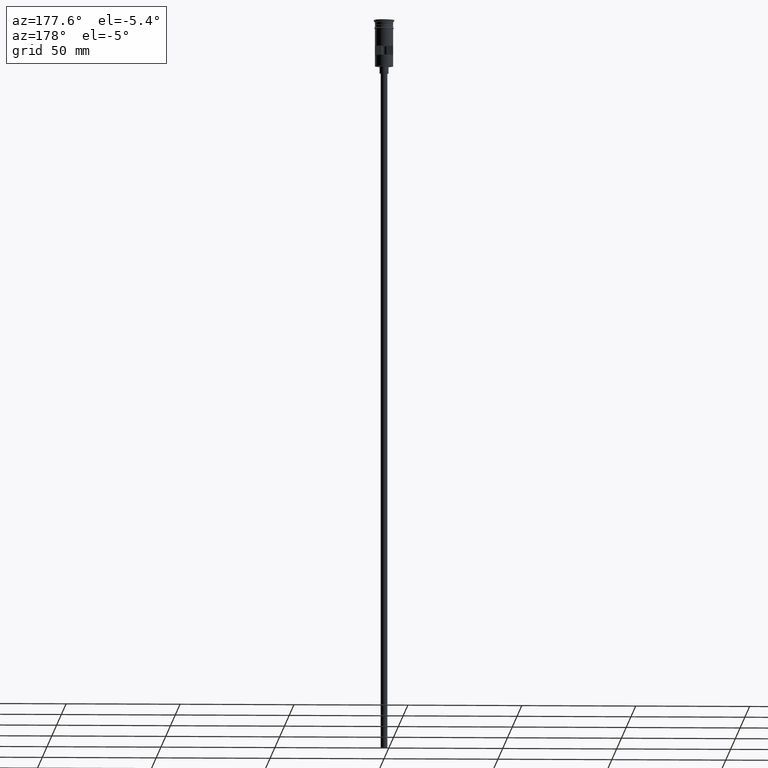
[diagram: clean part render]
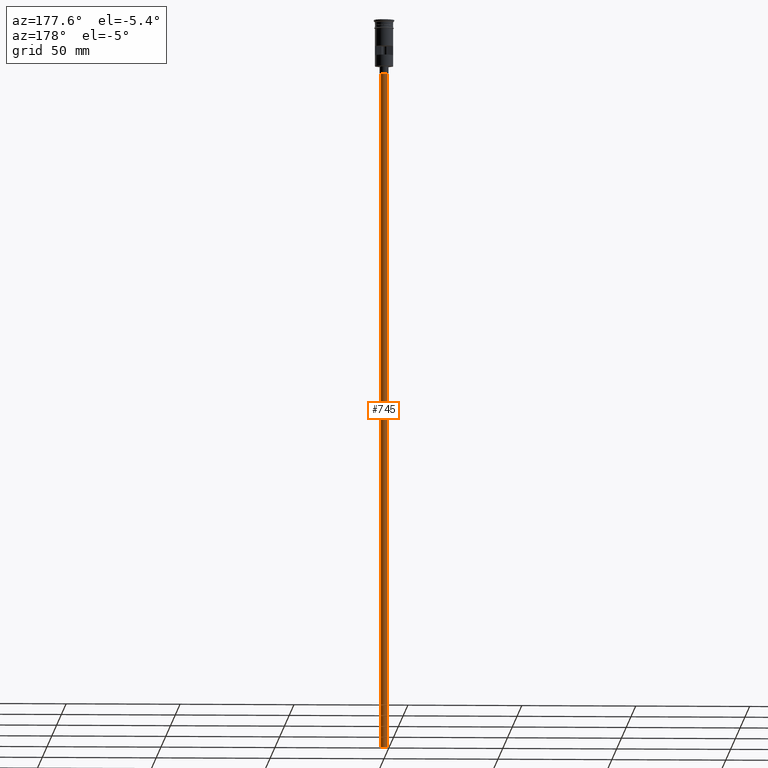
[diagram: same view with one face highlighted and labeled with its STEP entity id]
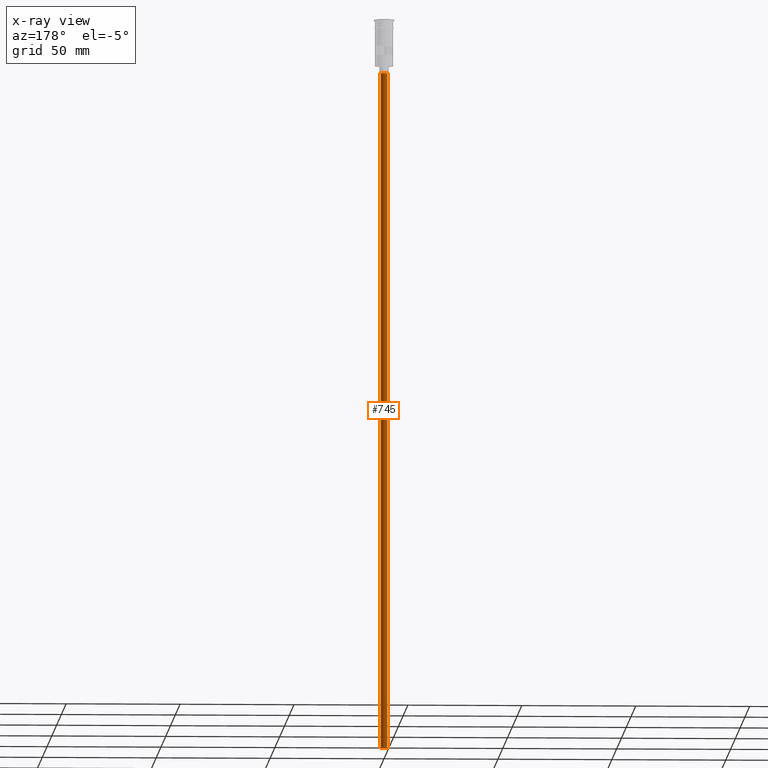
[diagram: x-ray of the same camera — body ghosted, the highlighted face saturated]
A machine part, auxiliary view. The second image highlights one B-rep face of the part: STEP entity #745.
The next image is the same camera in x-ray: the body ghosted, the highlighted face saturated — about 0% of this face is hidden behind the body in this view.
In plain terms, the highlighted cylindrical surface (edge-blend (fillet) strip) has radius 1.5 mm, axis along (-0, -0, 1).
Its self-contained STEP definition (entity closure, byte-faithful):
#29 = CARTESIAN_POINT ( 'NONE',  ( -1.500000000000000222, 1.836970198721030181E-16, -320.5000000000000000 ) ) ;
#61 = LINE ( 'NONE', #442, #183 ) ;
#83 = FACE_OUTER_BOUND ( 'NONE', #1556, .T. ) ;
#115 = VERTEX_POINT ( 'NONE', #29 ) ;
#133 = VERTEX_POINT ( 'NONE', #1150 ) ;
#154 = EDGE_CURVE ( 'NONE', #115, #1472, #1405, .T. ) ;
#183 = VECTOR ( 'NONE', #567, 1000.000000000000000 ) ;
#234 = ORIENTED_EDGE ( 'NONE', *, *, #1288, .F. ) ;
#299 = DIRECTION ( 'NONE',  ( -0.000000000000000000, -0.000000000000000000, 1.000000000000000000 ) ) ;
#338 = EDGE_CURVE ( 'NONE', #1472, #751, #872, .T. ) ;
#368 = DIRECTION ( 'NONE',  ( 0.000000000000000000, 0.000000000000000000, -1.000000000000000000 ) ) ;
#442 = CARTESIAN_POINT ( 'NONE',  ( 1.500000000000000222, 0.000000000000000000, -320.5000000000000000 ) ) ;
#513 = CARTESIAN_POINT ( 'NONE',  ( 0.000000000000000000, 0.000000000000000000, -320.5000000000000000 ) ) ;
#529 = AXIS2_PLACEMENT_3D ( 'NONE', #513, #1477, #1593 ) ;
#567 = DIRECTION ( 'NONE',  ( -0.000000000000000000, -0.000000000000000000, 1.000000000000000000 ) ) ;
#660 = CARTESIAN_POINT ( 'NONE',  ( -1.500000000000000222, 1.836970198721030181E-16, -23.49999999999999645 ) ) ;
#727 = CIRCLE ( 'NONE', #529, 1.500000000000000222 ) ;
#736 = AXIS2_PLACEMENT_3D ( 'NONE', #880, #368, #862 ) ;
#745 = ADVANCED_FACE ( 'NONE', ( #83 ), #956, .T. ) ;
#751 = VERTEX_POINT ( 'NONE', #1148 ) ;
#813 = VECTOR ( 'NONE', #299, 1000.000000000000000 ) ;
#862 = DIRECTION ( 'NONE',  ( -1.000000000000000000, 0.000000000000000000, 0.000000000000000000 ) ) ;
#872 = CIRCLE ( 'NONE', #736, 1.500000000000000222 ) ;
#880 = CARTESIAN_POINT ( 'NONE',  ( 0.000000000000000000, 0.000000000000000000, -23.49999999999999645 ) ) ;
#956 = CYLINDRICAL_SURFACE ( 'NONE', #1029, 1.500000000000000222 ) ;
#1029 = AXIS2_PLACEMENT_3D ( 'NONE', #1197, #1168, #1378 ) ;
#1050 = ORIENTED_EDGE ( 'NONE', *, *, #1409, .F. ) ;
#1076 = ORIENTED_EDGE ( 'NONE', *, *, #338, .T. ) ;
#1148 = CARTESIAN_POINT ( 'NONE',  ( 1.500000000000000222, 0.000000000000000000, -23.49999999999999645 ) ) ;
#1150 = CARTESIAN_POINT ( 'NONE',  ( 1.500000000000000222, 0.000000000000000000, -320.5000000000000000 ) ) ;
#1168 = DIRECTION ( 'NONE',  ( -0.000000000000000000, -0.000000000000000000, 1.000000000000000000 ) ) ;
#1197 = CARTESIAN_POINT ( 'NONE',  ( 0.000000000000000000, 0.000000000000000000, -320.5000000000000000 ) ) ;
#1288 = EDGE_CURVE ( 'NONE', #133, #751, #61, .T. ) ;
#1378 = DIRECTION ( 'NONE',  ( 1.000000000000000000, 0.000000000000000000, 0.000000000000000000 ) ) ;
#1403 = ORIENTED_EDGE ( 'NONE', *, *, #154, .T. ) ;
#1405 = LINE ( 'NONE', #1510, #813 ) ;
#1409 = EDGE_CURVE ( 'NONE', #115, #133, #727, .T. ) ;
#1472 = VERTEX_POINT ( 'NONE', #660 ) ;
#1477 = DIRECTION ( 'NONE',  ( 0.000000000000000000, 0.000000000000000000, -1.000000000000000000 ) ) ;
#1510 = CARTESIAN_POINT ( 'NONE',  ( -1.500000000000000222, 1.836970198721030181E-16, -320.5000000000000000 ) ) ;
#1556 = EDGE_LOOP ( 'NONE', ( #1050, #1403, #1076, #234 ) ) ;
#1593 = DIRECTION ( 'NONE',  ( -1.000000000000000000, 0.000000000000000000, 0.000000000000000000 ) ) ;